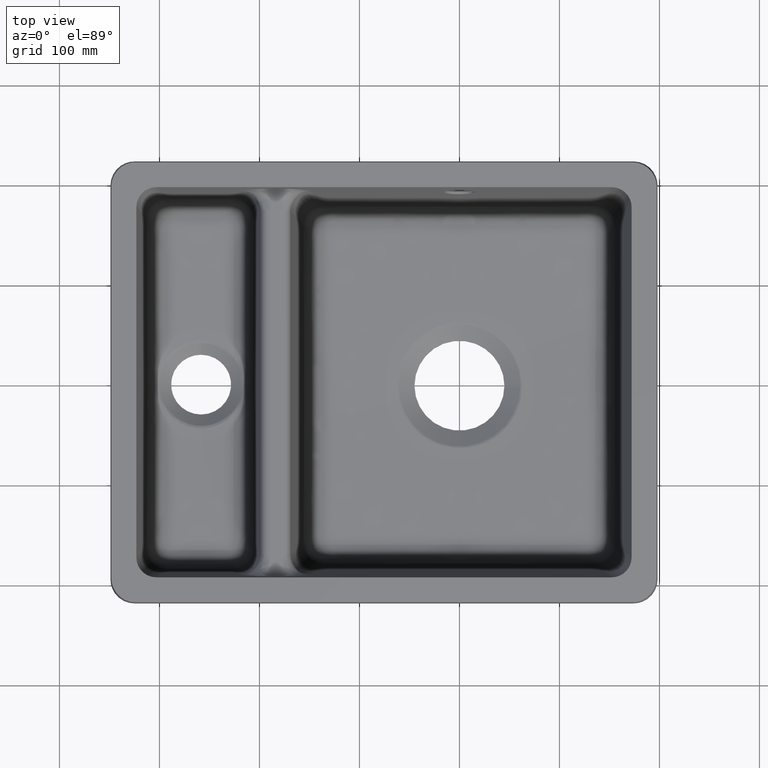
[diagram: clean part render]
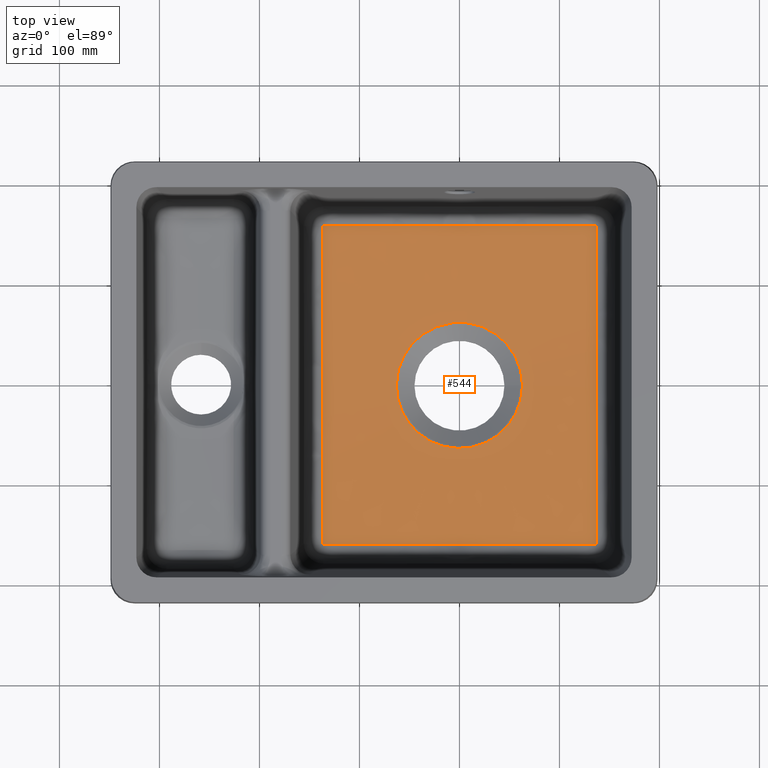
[diagram: same view with one face highlighted and labeled with its STEP entity id]
A machine part, top view. The second image highlights one B-rep face of the part: STEP entity #544.
In plain terms, the highlighted conical surface has half-angle 87.5 deg.
Its self-contained STEP definition (entity closure, byte-faithful):
#62=CONICAL_SURFACE('',#3039,0.,87.5000000000066);
#414=CIRCLE('',#3036,63.0450876662897);
#415=CIRCLE('',#3037,63.04508766629);
#544=ADVANCED_FACE('',(#721,#722),#62,.F.);
#721=FACE_BOUND('',#815,.T.);
#722=FACE_BOUND('',#816,.T.);
#815=EDGE_LOOP('',(#1518,#1519,#1520,#1521));
#816=EDGE_LOOP('',(#1522,#1523));
#1010=B_SPLINE_CURVE_WITH_KNOTS('',3,(#6309,#6310,#6311,#6312,#6313,#6314,
#6315,#6316,#6317,#6318,#6319,#6320,#6321,#6322,#6323,#6324,#6325,#6326,
#6327,#6328,#6329,#6330,#6331,#6332,#6333,#6334,#6335,#6336,#6337,#6338,
#6339,#6340,#6341,#6342,#6343,#6344,#6345,#6346,#6347,#6348,#6349,#6350),
 .UNSPECIFIED.,.F.,.F.,(4,2,2,2,2,2,2,2,2,2,2,2,2,2,2,2,2,2,2,2,4),(0.,
0.125,0.1875,0.21875,0.234375,0.2421875,0.25,0.312500000000001,0.343750000000001,
0.375000000000001,0.500000000000002,0.562500000000002,0.593750000000002,
0.609375000000002,0.625000000000003,0.687500000000003,0.718750000000003,
0.734375000000004,0.742187500000004,0.750000000000004,1.),.UNSPECIFIED.);
#1011=B_SPLINE_CURVE_WITH_KNOTS('',3,(#6353,#6354,#6355,#6356,#6357,#6358,
#6359,#6360,#6361,#6362,#6363,#6364,#6365,#6366,#6367,#6368,#6369,#6370,
#6371,#6372,#6373,#6374,#6375,#6376,#6377,#6378,#6379,#6380,#6381,#6382,
#6383,#6384,#6385,#6386,#6387,#6388,#6389,#6390,#6391,#6392,#6393,#6394,
#6395,#6396,#6397,#6398,#6399,#6400,#6401,#6402,#6403,#6404,#6405,#6406,
#6407,#6408,#6409,#6410,#6411,#6412,#6413,#6414,#6415,#6416,#6417,#6418,
#6419,#6420,#6421,#6422),.UNSPECIFIED.,.F.,.F.,(4,2,2,2,1,2,2,2,2,2,1,2,
2,2,2,2,2,2,2,2,2,2,2,2,2,2,2,1,2,2,2,2,2,1,2,2,4),(0.,0.0625000000000015,
0.0937500000000023,0.109375000000003,0.117187500000003,0.121093750000003,
0.125000000000003,0.187500000000004,0.218750000000005,0.234375000000005,
0.242187500000005,0.246093750000005,0.250000000000005,0.312500000000005,
0.343750000000005,0.359375000000005,0.367187500000005,0.375000000000005,
0.500000000000004,0.562500000000004,0.593750000000004,0.609375000000004,
0.617187500000004,0.625000000000003,0.687500000000003,0.718750000000003,
0.734375000000003,0.742187500000003,0.746093750000003,0.750000000000003,
0.812500000000002,0.843750000000002,0.859375000000002,0.867187500000002,
0.871093750000002,0.875000000000002,1.),.UNSPECIFIED.);
#1012=B_SPLINE_CURVE_WITH_KNOTS('',3,(#6424,#6425,#6426,#6427,#6428,#6429,
#6430,#6431,#6432,#6433,#6434,#6435,#6436,#6437,#6438,#6439,#6440,#6441,
#6442,#6443,#6444,#6445,#6446,#6447,#6448,#6449,#6450,#6451,#6452,#6453,
#6454,#6455,#6456,#6457,#6458,#6459,#6460,#6461,#6462,#6463,#6464,#6465),
 .UNSPECIFIED.,.F.,.F.,(4,2,2,2,2,2,2,2,2,2,2,2,2,2,2,2,2,2,2,2,4),(0.,
0.125000000000002,0.187500000000003,0.218750000000003,0.234375000000003,
0.242187500000003,0.250000000000003,0.312500000000003,0.343750000000003,
0.375000000000003,0.500000000000002,0.562500000000002,0.593750000000002,
0.609375000000002,0.625000000000002,0.687500000000002,0.718750000000002,
0.734375000000002,0.742187500000002,0.750000000000002,1.),.UNSPECIFIED.);
#1013=B_SPLINE_CURVE_WITH_KNOTS('',3,(#6467,#6468,#6469,#6470,#6471,#6472,
#6473,#6474,#6475,#6476,#6477,#6478,#6479,#6480,#6481,#6482,#6483,#6484,
#6485,#6486,#6487,#6488,#6489,#6490,#6491,#6492,#6493,#6494,#6495,#6496,
#6497,#6498,#6499,#6500,#6501,#6502,#6503,#6504,#6505,#6506,#6507,#6508,
#6509,#6510,#6511,#6512,#6513,#6514,#6515,#6516,#6517,#6518,#6519,#6520,
#6521,#6522,#6523,#6524,#6525,#6526,#6527,#6528,#6529,#6530,#6531,#6532,
#6533,#6534,#6535,#6536),.UNSPECIFIED.,.F.,.F.,(4,2,2,2,1,2,2,2,2,2,1,2,
2,2,2,2,2,2,2,2,2,2,2,2,2,2,2,1,2,2,2,2,2,1,2,2,4),(0.,0.0624999999999961,
0.0937499999999942,0.109374999999993,0.117187499999993,0.121093749999993,
0.124999999999993,0.187499999999992,0.218749999999992,0.234374999999991,
0.242187499999991,0.246093749999991,0.249999999999991,0.312499999999992,
0.343749999999992,0.359374999999992,0.367187499999993,0.374999999999993,
0.499999999999994,0.562499999999995,0.593749999999996,0.609374999999996,
0.617187499999996,0.624999999999996,0.687499999999997,0.718749999999998,
0.734374999999998,0.742187499999998,0.746093749999998,0.749999999999999,
0.812499999999999,0.843749999999999,0.859374999999999,0.867187499999999,
0.871093749999999,0.874999999999999,1.),.UNSPECIFIED.);
#1518=ORIENTED_EDGE('',*,*,#2491,.T.);
#1519=ORIENTED_EDGE('',*,*,#2492,.T.);
#1520=ORIENTED_EDGE('',*,*,#2493,.T.);
#1521=ORIENTED_EDGE('',*,*,#2494,.T.);
#1522=ORIENTED_EDGE('',*,*,#2490,.T.);
#1523=ORIENTED_EDGE('',*,*,#2489,.T.);
#2158=VERTEX_POINT('',#6305);
#2159=VERTEX_POINT('',#6306);
#2160=VERTEX_POINT('',#6351);
#2161=VERTEX_POINT('',#6352);
#2162=VERTEX_POINT('',#6423);
#2163=VERTEX_POINT('',#6466);
#2489=EDGE_CURVE('',#2158,#2159,#414,.T.);
#2490=EDGE_CURVE('',#2159,#2158,#415,.T.);
#2491=EDGE_CURVE('',#2160,#2161,#1010,.T.);
#2492=EDGE_CURVE('',#2161,#2162,#1011,.T.);
#2493=EDGE_CURVE('',#2162,#2163,#1012,.T.);
#2494=EDGE_CURVE('',#2163,#2160,#1013,.T.);
#3036=AXIS2_PLACEMENT_3D('',#6304,#3493,#3494);
#3037=AXIS2_PLACEMENT_3D('',#6307,#3495,#3496);
#3039=AXIS2_PLACEMENT_3D('',#6537,#3499,#3500);
#3493=DIRECTION('',(6.29556950423147E-14,4.40249615681022E-16,-1.));
#3494=DIRECTION('',(-1.,0.,-6.29556950423148E-14));
#3495=DIRECTION('',(4.7546958493497E-14,-2.30257832238939E-28,-1.));
#3496=DIRECTION('',(-1.,0.,-4.75469584934962E-14));
#3499=DIRECTION('',(6.51099621570432E-16,-1.63816664787122E-15,1.));
#3500=DIRECTION('',(0.,-1.,-1.63840038236865E-15));
#6304=CARTESIAN_POINT('',(-4.59066514520415E-13,-1.10290699238518E-14,-179.979019440268));
#6305=CARTESIAN_POINT('',(-63.0450876662902,-2.77555756156289E-13,-179.979019440272));
#6306=CARTESIAN_POINT('',(63.0450876662892,1.94289029309402E-13,-179.979019440265));
#6307=CARTESIAN_POINT('',(-5.26942117318294E-13,4.32184063229676E-13,-179.979019440268));
#6309=CARTESIAN_POINT('',(136.470668134978,159.515646405139,-173.566002157344));
#6310=CARTESIAN_POINT('',(124.333349818471,159.504356526858,-173.910874300143));
#6311=CARTESIAN_POINT('',(112.662716253049,159.499280589623,-174.215867855831));
#6312=CARTESIAN_POINT('',(95.6906617268245,159.49238717541,-174.613540308696));
#6313=CARTESIAN_POINT('',(90.1212767664876,159.490712503621,-174.736128146206));
#6314=CARTESIAN_POINT('',(81.8682659652029,159.489533985472,-174.905055432305));
#6315=CARTESIAN_POINT('',(79.1340313258645,159.489356859357,-174.958872115977));
#6316=CARTESIAN_POINT('',(75.0532795338266,159.489288481797,-175.035858523943));
#6317=CARTESIAN_POINT('',(73.696457415928,159.489296713664,-175.060897557008));
#6318=CARTESIAN_POINT('',(71.6657538274963,159.489319076113,-175.097521452221));
#6319=CARTESIAN_POINT('',(70.9896072572786,159.489328033723,-175.10957364156));
#6320=CARTESIAN_POINT('',(69.6387175225136,159.489340708356,-175.133366468778));
#6321=CARTESIAN_POINT('',(69.0144531890429,159.489344715971,-175.144239588305));
#6322=CARTESIAN_POINT('',(62.4932833099962,159.489307737912,-175.256311012793));
#6323=CARTESIAN_POINT('',(56.77809352713,159.487555293144,-175.343914121877));
#6324=CARTESIAN_POINT('',(48.265601667474,159.488228009805,-175.457294883144));
#6325=CARTESIAN_POINT('',(45.4380435521268,159.488897192806,-175.492084486507));
#6326=CARTESIAN_POINT('',(39.7912695410327,159.490580455682,-175.55565572578));
#6327=CARTESIAN_POINT('',(37.0285965230389,159.491595338897,-175.583920689573));
#6328=CARTESIAN_POINT('',(22.6399636745025,159.493080259564,-175.715392311074));
#6329=CARTESIAN_POINT('',(11.4181252088029,159.494417837594,-175.767971149206));
#6330=CARTESIAN_POINT('',(-5.71885312757056,159.494390288667,-175.767941732627));
#6331=CARTESIAN_POINT('',(-11.3791442709449,159.490106840743,-175.754781974445));
#6332=CARTESIAN_POINT('',(-19.8869761219691,159.489573539279,-175.71531740819));
#6333=CARTESIAN_POINT('',(-22.725798465636,159.490110500044,-175.698875064607));
#6334=CARTESIAN_POINT('',(-26.9998988469085,159.491226646876,-175.669280316988));
#6335=CARTESIAN_POINT('',(-28.4272397581428,159.491635092642,-175.658593529074));
#6336=CARTESIAN_POINT('',(-31.2890764632343,159.492218278229,-175.635576209165));
#6337=CARTESIAN_POINT('',(-32.7522894618502,159.492389832662,-175.622983202669));
#6338=CARTESIAN_POINT('',(-39.8036525748415,159.491640122347,-175.558533554982));
#6339=CARTESIAN_POINT('',(-45.4376037519736,159.488877642914,-175.49495598198));
#6340=CARTESIAN_POINT('',(-53.9492510780067,159.48834886655,-175.381562840199));
#6341=CARTESIAN_POINT('',(-56.7964980973651,159.488611219496,-175.340760662559));
#6342=CARTESIAN_POINT('',(-61.0904656087016,159.489244240032,-175.27505070053));
#6343=CARTESIAN_POINT('',(-62.525631095552,159.489487377316,-175.252396263925));
#6344=CARTESIAN_POINT('',(-64.6850899078238,159.48978394523,-175.217287935126));
#6345=CARTESIAN_POINT('',(-65.4060275163978,159.489871032755,-175.205397379877));
#6346=CARTESIAN_POINT('',(-66.850291270777,159.489997582465,-175.181240711416));
#6347=CARTESIAN_POINT('',(-67.6242198120956,159.490037188424,-175.168104875368));
#6348=CARTESIAN_POINT('',(-89.8659738602768,159.490103012226,-174.785827286521));
#6349=CARTESIAN_POINT('',(-112.198345321029,159.494221036626,-174.255638954398));
#6350=CARTESIAN_POINT('',(-136.470662606696,159.517051160552,-173.565955709638));
#6351=CARTESIAN_POINT('',(136.470850312082,159.515469260546,-173.566002863517));
#6352=CARTESIAN_POINT('',(-136.471542482253,159.515943692701,-173.565967477511));
#6353=CARTESIAN_POINT('',(-136.472278042519,159.515385889801,-173.56596510552));
#6354=CARTESIAN_POINT('',(-136.462134268305,152.501763089333,-173.798937467626));
#6355=CARTESIAN_POINT('',(-136.456008569485,145.685078876197,-174.018793907892));
#6356=CARTESIAN_POINT('',(-136.446892528473,135.74299872101,-174.32890468553));
#6357=CARTESIAN_POINT('',(-136.44398307129,132.476056175425,-174.428995964283));
#6358=CARTESIAN_POINT('',(-136.440023980722,127.643956791844,-174.574214411721));
#6359=CARTESIAN_POINT('',(-136.438777895979,126.044636997125,-174.621800815752));
#6360=CARTESIAN_POINT('',(-136.437096720248,123.662383691596,-174.691950804126));
#6361=CARTESIAN_POINT('',(-136.43630362229,122.475438042173,-174.726718393895));
#6362=CARTESIAN_POINT('',(-136.435600642639,121.294693965052,-174.761024877037));
#6363=CARTESIAN_POINT('',(-136.435154398481,120.508901211927,-174.783793397658));
#6364=CARTESIAN_POINT('',(-136.434964923469,120.160758756472,-174.793856595929));
#6365=CARTESIAN_POINT('',(-136.431191604243,112.755568179542,-175.007234138341));
#6366=CARTESIAN_POINT('',(-136.430201210137,105.966410113067,-175.19289366435));
#6367=CARTESIAN_POINT('',(-136.428472858872,96.017511289965,-175.448633358973));
#6368=CARTESIAN_POINT('',(-136.427961272341,92.7401925260555,-175.530088324782));
#6369=CARTESIAN_POINT('',(-136.427432100002,87.8766461191497,-175.646583374898));
#6370=CARTESIAN_POINT('',(-136.427298336572,86.2641910328093,-175.684467158504));
#6371=CARTESIAN_POINT('',(-136.427194875489,83.8577364218662,-175.739870984263));
#6372=CARTESIAN_POINT('',(-136.427167515397,82.6575649723082,-175.76721743473));
#6373=CARTESIAN_POINT('',(-136.427183069298,81.4618050530848,-175.794030691578));
#6374=CARTESIAN_POINT('',(-136.427203645236,80.6655922361954,-175.811787708673));
#6375=CARTESIAN_POINT('',(-136.427217315227,80.3008323232012,-175.819882046952));
#6376=CARTESIAN_POINT('',(-136.427600475468,72.9904553822444,-175.981126156323));
#6377=CARTESIAN_POINT('',(-136.42554599746,66.2684035279238,-176.114933739214));
#6378=CARTESIAN_POINT('',(-136.427223722561,56.3277871905252,-176.288717745246));
#6379=CARTESIAN_POINT('',(-136.428473239763,53.0376947474976,-176.34215785254));
#6380=CARTESIAN_POINT('',(-136.430818587109,48.1232059290951,-176.415586171403));
#6381=CARTESIAN_POINT('',(-136.431663951911,46.4884664507904,-176.438940304012));
#6382=CARTESIAN_POINT('',(-136.432799110281,44.0395187409425,-176.472288542406));
#6383=CARTESIAN_POINT('',(-136.433154126468,43.2237286805169,-176.483124128451));
#6384=CARTESIAN_POINT('',(-136.433763708977,41.5928586984877,-176.504234313701));
#6385=CARTESIAN_POINT('',(-136.43401106854,40.812076502304,-176.514088278082));
#6386=CARTESIAN_POINT('',(-136.437055080067,26.3757203745475,-176.691138868434));
#6387=CARTESIAN_POINT('',(-136.439787756329,13.4064435348343,-176.774486200989));
#6388=CARTESIAN_POINT('',(-136.439533529316,-6.68523196609727,-176.774574409568));
#6389=CARTESIAN_POINT('',(-136.427535712184,-13.273232005317,-176.753775998048));
#6390=CARTESIAN_POINT('',(-136.426237067828,-23.1957949269254,-176.691336659198));
#6391=CARTESIAN_POINT('',(-136.427803244886,-26.5099925186108,-176.665316592653));
#6392=CARTESIAN_POINT('',(-136.430970905412,-31.5153634172585,-176.618476062443));
#6393=CARTESIAN_POINT('',(-136.432121078882,-33.1894851999611,-176.601560813974));
#6394=CARTESIAN_POINT('',(-136.433355517316,-35.7120255914642,-176.574235333673));
#6395=CARTESIAN_POINT('',(-136.433682799588,-36.5547642217607,-176.564801405639));
#6396=CARTESIAN_POINT('',(-136.434035702684,-38.2444877790603,-176.545282680373));
#6397=CARTESIAN_POINT('',(-136.43405316801,-39.1258839335925,-176.534776107342));
#6398=CARTESIAN_POINT('',(-136.43231936589,-46.4601926178772,-176.444880003036));
#6399=CARTESIAN_POINT('',(-136.427276936005,-52.992810429045,-176.347007595152));
#6400=CARTESIAN_POINT('',(-136.425597570485,-62.9346687009689,-176.173251843905));
#6401=CARTESIAN_POINT('',(-136.425706393381,-66.2721649787186,-176.110842070253));
#6402=CARTESIAN_POINT('',(-136.426178000059,-71.3265044904087,-176.010490624921));
#6403=CARTESIAN_POINT('',(-136.42637599129,-73.019281605205,-175.975917345667));
#6404=CARTESIAN_POINT('',(-136.42657239608,-75.5718740961043,-175.922373230574));
#6405=CARTESIAN_POINT('',(-136.426644837807,-76.8515253167538,-175.895180123973));
#6406=CARTESIAN_POINT('',(-136.426643659795,-78.1364617548318,-175.867355443793));
#6407=CARTESIAN_POINT('',(-136.426622379772,-78.9942875582377,-175.848665307321));
#6408=CARTESIAN_POINT('',(-136.42659896095,-79.4567438185985,-175.838523596729));
#6409=CARTESIAN_POINT('',(-136.42607772975,-86.2088937555736,-175.689621439825));
#6410=CARTESIAN_POINT('',(-136.427056429942,-92.6856101478489,-175.534295105374));
#6411=CARTESIAN_POINT('',(-136.428773402319,-102.636377300295,-175.278530911767));
#6412=CARTESIAN_POINT('',(-136.429400758804,-105.992384727643,-175.189480398576));
#6413=CARTESIAN_POINT('',(-136.430624744243,-111.090004666284,-175.050210955807));
#6414=CARTESIAN_POINT('',(-136.431084709432,-112.799801978888,-175.002838862721));
#6415=CARTESIAN_POINT('',(-136.431929462277,-115.380913793041,-174.930357304845));
#6416=CARTESIAN_POINT('',(-136.432391147908,-116.675572730407,-174.893760671346));
#6417=CARTESIAN_POINT('',(-136.432932069014,-117.976477355536,-174.856630256005));
#6418=CARTESIAN_POINT('',(-136.433312977608,-118.84514461347,-174.83175802759));
#6419=CARTESIAN_POINT('',(-136.433535050942,-119.324321215826,-174.817990690343));
#6420=CARTESIAN_POINT('',(-136.439826171216,-132.246847115054,-174.445657681556));
#6421=CARTESIAN_POINT('',(-136.450750906827,-145.483843971342,-174.032089504636));
#6422=CARTESIAN_POINT('',(-136.47092391143,-159.515391898043,-173.566003341135));
#6423=CARTESIAN_POINT('',(-136.47080664443,-159.515474874488,-173.566003916719));
#6424=CARTESIAN_POINT('',(-136.470668146326,-159.515643526554,-173.566002252523));
#6425=CARTESIAN_POINT('',(-124.333381928427,-159.504354927407,-173.910873445423));
#6426=CARTESIAN_POINT('',(-112.662777160341,-159.499280471688,-174.215866272582));
#6427=CARTESIAN_POINT('',(-95.6907624151559,-159.492388992318,-174.613537964712));
#6428=CARTESIAN_POINT('',(-90.1213901577042,-159.490714913469,-174.736125603986));
#6429=CARTESIAN_POINT('',(-81.8683978835588,-159.489537137685,-174.905052675746));
#6430=CARTESIAN_POINT('',(-79.1341693329426,-159.489360234781,-174.958869301807));
#6431=CARTESIAN_POINT('',(-75.0534265900424,-159.489292151042,-175.035855644111));
#6432=CARTESIAN_POINT('',(-73.6966074745872,-159.489300474053,-175.060894658747));
#6433=CARTESIAN_POINT('',(-71.6659083752263,-159.489322962831,-175.097518531505));
#6434=CARTESIAN_POINT('',(-70.9897632989366,-159.489331960821,-175.109570714225));
#6435=CARTESIAN_POINT('',(-69.638876548261,-159.489344712766,-175.133363529932));
#6436=CARTESIAN_POINT('',(-69.0143895823093,-159.489348833702,-175.144240525638));
#6437=CARTESIAN_POINT('',(-62.4932537845994,-159.489311472339,-175.256311294424));
#6438=CARTESIAN_POINT('',(-56.7780869215427,-159.487560516144,-175.343913982323));
#6439=CARTESIAN_POINT('',(-48.2656196904338,-159.488235078871,-175.457294354306));
#6440=CARTESIAN_POINT('',(-45.4380681622435,-159.488904816631,-175.492083868322));
#6441=CARTESIAN_POINT('',(-39.7913043311031,-159.490588591488,-175.555655009733));
#6442=CARTESIAN_POINT('',(-37.028525040821,-159.491603998554,-175.58392101323));
#6443=CARTESIAN_POINT('',(-22.6399867928335,-159.493083306405,-175.715391810041));
#6444=CARTESIAN_POINT('',(-11.4185053597427,-159.494416117436,-175.767970439434));
#6445=CARTESIAN_POINT('',(5.71866644097441,-159.49440764756,-175.76794136782));
#6446=CARTESIAN_POINT('',(11.3790146770851,-159.490126122023,-175.754781614987));
#6447=CARTESIAN_POINT('',(19.8869222597937,-159.489592607609,-175.715316892297));
#6448=CARTESIAN_POINT('',(22.7257681964832,-159.490128973552,-175.698874469159));
#6449=CARTESIAN_POINT('',(26.9999016350969,-159.491243830087,-175.669279561093));
#6450=CARTESIAN_POINT('',(28.4272531766793,-159.49165177908,-175.658592712844));
#6451=CARTESIAN_POINT('',(31.2891103879643,-159.492233898965,-175.63557525856));
#6452=CARTESIAN_POINT('',(32.752246935225,-159.492404585567,-175.622982945674));
#6453=CARTESIAN_POINT('',(39.8036159432105,-159.491653545924,-175.558533381053));
#6454=CARTESIAN_POINT('',(45.437577270347,-159.488892072985,-175.494955714887));
#6455=CARTESIAN_POINT('',(53.9492495108588,-159.488365152532,-175.381562193932));
#6456=CARTESIAN_POINT('',(56.7965064476399,-159.488628178251,-175.340759849997));
#6457=CARTESIAN_POINT('',(61.0904914239502,-159.489261911125,-175.275049578667));
#6458=CARTESIAN_POINT('',(62.5256631637681,-159.489505236149,-175.252395028987));
#6459=CARTESIAN_POINT('',(64.6851320221738,-159.489801961713,-175.217286515609));
#6460=CARTESIAN_POINT('',(65.406073090562,-159.489889081112,-175.20539589634));
#6461=CARTESIAN_POINT('',(66.8503439899292,-159.490015644808,-175.181239094851));
#6462=CARTESIAN_POINT('',(67.6240561337496,-159.490055147749,-175.168106943389));
#6463=CARTESIAN_POINT('',(89.8658597529828,-159.490122212698,-174.78582925625));
#6464=CARTESIAN_POINT('',(112.198281409361,-159.494243532671,-174.255639959282));
#6465=CARTESIAN_POINT('',(136.470662507945,-159.517076247518,-173.565954880147));
#6466=CARTESIAN_POINT('',(136.470893923527,-159.516184645939,-173.565977891852));
#6467=CARTESIAN_POINT('',(136.471045363218,-159.51539135917,-173.565999911799));
#6468=CARTESIAN_POINT('',(136.460928497055,-152.499808589071,-173.799037424589));
#6469=CARTESIAN_POINT('',(136.454832164677,-145.681268995818,-174.018951812286));
#6470=CARTESIAN_POINT('',(136.445757202244,-135.73655195981,-174.329138706193));
#6471=CARTESIAN_POINT('',(136.442861075556,-132.468754736899,-174.429253556222));
#6472=CARTESIAN_POINT('',(136.438921655101,-127.63540755636,-174.574504659356));
#6473=CARTESIAN_POINT('',(136.437682079289,-126.03567752575,-174.622101498416));
#6474=CARTESIAN_POINT('',(136.43601067533,-123.652817070433,-174.692266464028));
#6475=CARTESIAN_POINT('',(136.435222465856,-122.465569896417,-174.72704137359));
#6476=CARTESIAN_POINT('',(136.434524397846,-121.284527299674,-174.761354923285));
#6477=CARTESIAN_POINT('',(136.434081435672,-120.498536192936,-174.784128098667));
#6478=CARTESIAN_POINT('',(136.433893413779,-120.150294208029,-174.79419367973));
#6479=CARTESIAN_POINT('',(136.430151398416,-112.743440365823,-175.007608410578));
#6480=CARTESIAN_POINT('',(136.429191215414,-105.952790019288,-175.193295416128));
#6481=CARTESIAN_POINT('',(136.427506806443,-96.0017265258584,-175.449065048051));
#6482=CARTESIAN_POINT('',(136.427009712947,-92.723698317574,-175.530528112625));
#6483=CARTESIAN_POINT('',(136.426501973419,-87.8590996558376,-175.647032490386));
#6484=CARTESIAN_POINT('',(136.426375302401,-86.2462957901553,-175.684918913122));
#6485=CARTESIAN_POINT('',(136.426282369973,-83.8393200663306,-175.740325992452));
#6486=CARTESIAN_POINT('',(136.426260246349,-82.638888573089,-175.767673893424));
#6487=CARTESIAN_POINT('',(136.426280984733,-81.4428691985245,-175.794488336354));
#6488=CARTESIAN_POINT('',(136.426305003952,-80.6464835212532,-175.81224608541));
#6489=CARTESIAN_POINT('',(136.426320249512,-80.2816132944013,-175.820341420331));
#6490=CARTESIAN_POINT('',(136.426734815195,-72.9701756855433,-175.981579531727));
#6491=CARTESIAN_POINT('',(136.424704222514,-66.2471707264778,-176.11537434446));
#6492=CARTESIAN_POINT('',(136.426424873434,-56.3051050316279,-176.289128507746));
#6493=CARTESIAN_POINT('',(136.427689622584,-53.0145259342992,-176.342556886207));
#6494=CARTESIAN_POINT('',(136.430058083936,-48.0992888771102,-176.415964939944));
#6495=CARTESIAN_POINT('',(136.430911172447,-46.4642969303111,-176.439311872197));
#6496=CARTESIAN_POINT('',(136.432057553492,-44.0149642145672,-176.472648642089));
#6497=CARTESIAN_POINT('',(136.432416248212,-43.199044767694,-176.483480293972));
#6498=CARTESIAN_POINT('',(136.433032974329,-41.5679136170691,-176.504582388241));
#6499=CARTESIAN_POINT('',(136.433283680915,-40.7869072498969,-176.514433576528));
#6500=CARTESIAN_POINT('',(136.436385896747,-26.3498585452976,-176.691388136071));
#6501=CARTESIAN_POINT('',(136.439172514547,-13.3781064907531,-176.774630477651));
#6502=CARTESIAN_POINT('',(136.438991300938,6.71216018336865,-176.774539354026));
#6503=CARTESIAN_POINT('',(136.427025449659,13.2997730290719,-176.753684643989));
#6504=CARTESIAN_POINT('',(136.425766310295,23.2218145329085,-176.691166075689));
#6505=CARTESIAN_POINT('',(136.427344590921,26.5358479651381,-176.665120469048));
#6506=CARTESIAN_POINT('',(136.430529865898,31.5409773675229,-176.618242933276));
#6507=CARTESIAN_POINT('',(136.431685847734,33.2150194331765,-176.60131556705));
#6508=CARTESIAN_POINT('',(136.432929289683,35.7374401462084,-176.573972236259));
#6509=CARTESIAN_POINT('',(136.433259623437,36.5801388662229,-176.564532412419));
#6510=CARTESIAN_POINT('',(136.433618816525,38.2697823526067,-176.545002004257));
#6511=CARTESIAN_POINT('',(136.433639635409,39.1512313585164,-176.534488251075));
#6512=CARTESIAN_POINT('',(136.431935242514,46.4843393874836,-176.444553089711));
#6513=CARTESIAN_POINT('',(136.426926519892,53.0159762463646,-176.346652976635));
#6514=CARTESIAN_POINT('',(136.425289376426,62.9563857503519,-176.172866185892));
#6515=CARTESIAN_POINT('',(136.425411360432,66.2934030392078,-176.110447818789));
#6516=CARTESIAN_POINT('',(136.425902438631,71.3470183854709,-176.010086112852));
#6517=CARTESIAN_POINT('',(136.426106896111,73.0395531788525,-175.97550985166));
#6518=CARTESIAN_POINT('',(136.42631326641,75.5917794724985,-175.92196192105));
#6519=CARTESIAN_POINT('',(136.42639075897,76.8712469171577,-175.89476707104));
#6520=CARTESIAN_POINT('',(136.426394803602,78.1559983294728,-175.866940893972));
#6521=CARTESIAN_POINT('',(136.426377052084,79.0137004795803,-175.848249814359));
#6522=CARTESIAN_POINT('',(136.426355557745,79.4761192345022,-175.838106982906));
#6523=CARTESIAN_POINT('',(136.425862859665,86.2267967241743,-175.689209244191));
#6524=CARTESIAN_POINT('',(136.426869903319,92.7021170245386,-175.533894515294));
#6525=CARTESIAN_POINT('',(136.428629908886,102.650719364059,-175.278158900906));
#6526=CARTESIAN_POINT('',(136.429271760784,106.005993624291,-175.189119775936));
#6527=CARTESIAN_POINT('',(136.430517605727,111.102491389006,-175.049870208221));
#6528=CARTESIAN_POINT('',(136.430984874989,112.811910918491,-175.002505205606));
#6529=CARTESIAN_POINT('',(136.431840567694,115.392449938946,-174.930034981618));
#6530=CARTESIAN_POINT('',(136.432307718793,116.686820950746,-174.893444189608));
#6531=CARTESIAN_POINT('',(136.432854086535,117.987435266745,-174.856319877573));
#6532=CARTESIAN_POINT('',(136.433238620358,118.855908446134,-174.831451776211));
#6533=CARTESIAN_POINT('',(136.433462691791,119.334988947678,-174.817686426861));
#6534=CARTESIAN_POINT('',(136.439807188876,132.254254739608,-174.445426890226));
#6535=CARTESIAN_POINT('',(136.450787040437,145.487756257295,-174.031958555873));
#6536=CARTESIAN_POINT('',(136.471012781506,159.515391503733,-173.566000831782));
#6537=CARTESIAN_POINT('',(-3.33066907387547E-13,-2.77555756156289E-14,-182.731627413525));